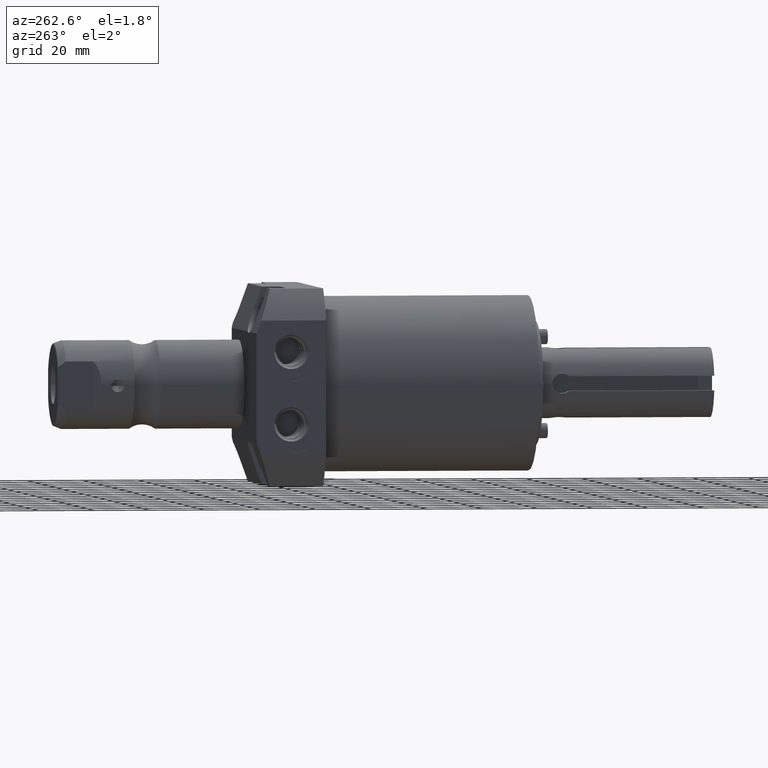
[diagram: clean part render]
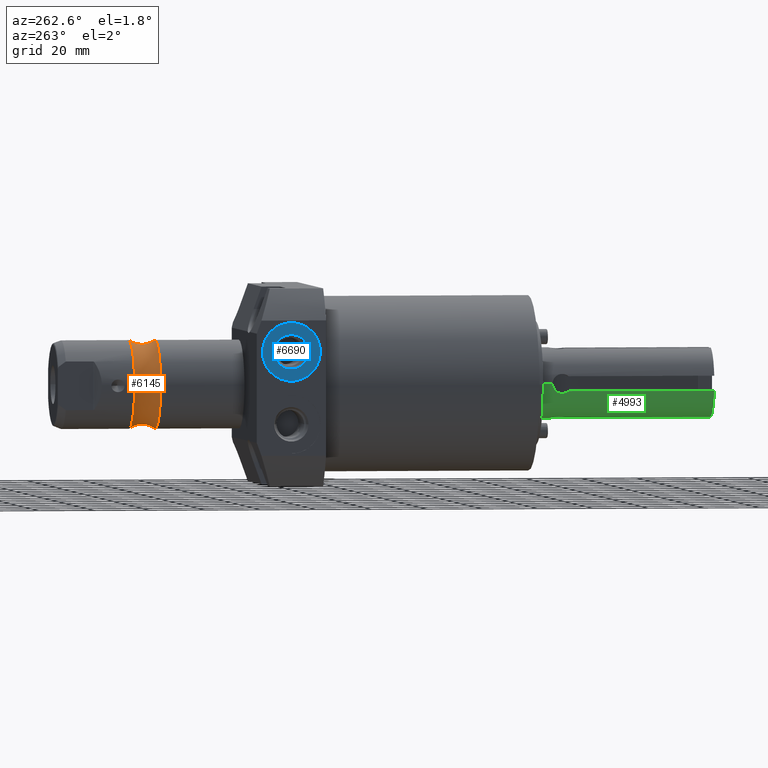
[diagram: same view with three faces highlighted in distinct colors, each labeled with its STEP entity id]
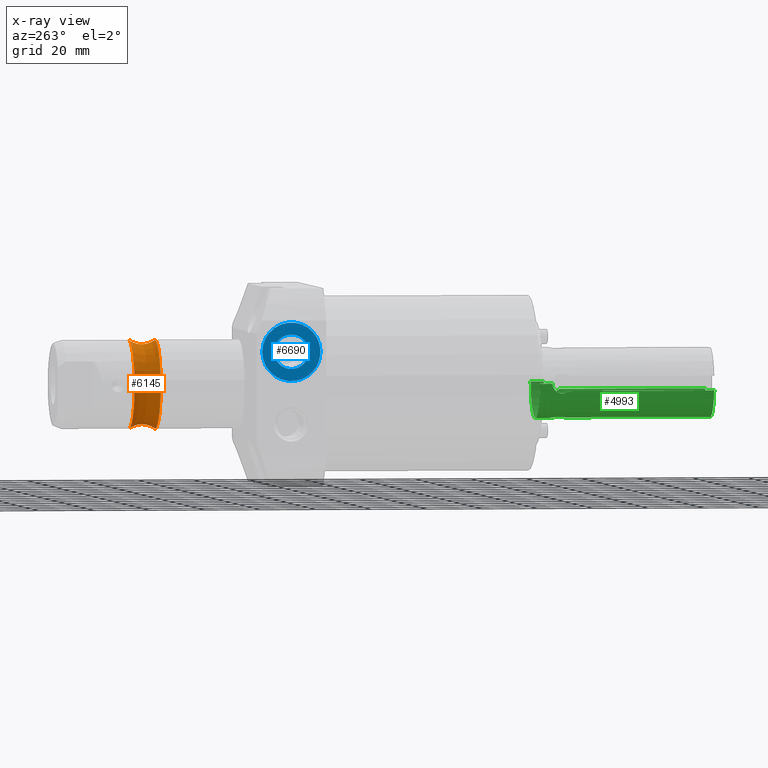
[diagram: x-ray of the same camera — body ghosted, the three highlighted faces saturated]
A machine part, auxiliary view with three faces highlighted in distinct colors.
The next image is the same camera in x-ray (body ghosted, the three faces saturated) — at least one of them is partly hidden behind the body in this view.
Their STEP definitions:

[orange] entity #6145 — the highlighted toroidal blend (fillet) surface has major radius 22.2504 mm and minor (blend) radius 7.9248 mm.
#2004=CARTESIAN_POINT('',(0.E0,5.488E0,-8.76E-1));
#2005=DIRECTION('',(-1.E0,0.E0,0.E0));
#2006=DIRECTION('',(0.E0,-5.939700144290E-1,8.044871794872E-1));
#2007=AXIS2_PLACEMENT_3D('',#2004,#2005,#2006);
#2012=CARTESIAN_POINT('',(0.E0,5.488E0,8.76E-1));
#2013=DIRECTION('',(1.E0,0.E0,0.E0));
#2014=DIRECTION('',(0.E0,-5.939700144290E-1,-8.044871794872E-1));
#2015=AXIS2_PLACEMENT_3D('',#2012,#2013,#2014);
#2020=CARTESIAN_POINT('',(0.E0,5.302681355498E0,0.E0));
#2021=DIRECTION('',(0.E0,1.E0,0.E0));
#2022=DIRECTION('',(0.E0,0.E0,-1.E0));
#2023=AXIS2_PLACEMENT_3D('',#2020,#2021,#2022);
#2504=CARTESIAN_POINT('',(0.E0,5.673318644502E0,0.E0));
#2505=DIRECTION('',(0.E0,1.E0,0.E0));
#2506=DIRECTION('',(0.E0,0.E0,-1.E0));
#2507=AXIS2_PLACEMENT_3D('',#2504,#2505,#2506);
#4394=CARTESIAN_POINT('',(0.E0,5.302681355498E0,-6.25E-1));
#4395=CARTESIAN_POINT('',(0.E0,5.673318644502E0,-6.25E-1));
#4396=VERTEX_POINT('',#4394);
#4397=VERTEX_POINT('',#4395);
#4398=CARTESIAN_POINT('',(0.E0,5.302681355498E0,6.25E-1));
#4399=CARTESIAN_POINT('',(0.E0,5.673318644502E0,6.25E-1));
#4400=VERTEX_POINT('',#4398);
#4401=VERTEX_POINT('',#4399);
#6131=CARTESIAN_POINT('',(0.E0,5.488E0,0.E0));
#6132=DIRECTION('',(0.E0,-1.E0,0.E0));
#6133=DIRECTION('',(0.E0,0.E0,1.E0));
#6134=AXIS2_PLACEMENT_3D('',#6131,#6132,#6133);
#6135=TOROIDAL_SURFACE('',#6134,8.76E-1,3.12E-1);
#6137=ORIENTED_EDGE('',*,*,#6136,.T.);
#6139=ORIENTED_EDGE('',*,*,#6138,.T.);
#6141=ORIENTED_EDGE('',*,*,#6140,.F.);
#6142=ORIENTED_EDGE('',*,*,#6113,.F.);
#6143=EDGE_LOOP('',(#6137,#6139,#6141,#6142));
#6144=FACE_OUTER_BOUND('',#6143,.F.);
#2008=CIRCLE('',#2007,3.12E-1);
#2016=CIRCLE('',#2015,3.12E-1);
#2024=CIRCLE('',#2023,6.25E-1);
#2508=CIRCLE('',#2507,6.25E-1);
#6113=EDGE_CURVE('',#4396,#4400,#2024,.T.);
#6136=EDGE_CURVE('',#4396,#4397,#2008,.T.);
#6138=EDGE_CURVE('',#4397,#4401,#2508,.T.);
#6140=EDGE_CURVE('',#4400,#4401,#2016,.T.);
#6145=ADVANCED_FACE('',(#6144),#6135,.F.);

[blue] entity #6690 — the highlighted planar face has unit normal (-1, 0, 0).
#2558=CARTESIAN_POINT('',(-1.961E0,3.619E0,5.11E-1));
#2559=DIRECTION('',(-1.E0,0.E0,0.E0));
#2560=DIRECTION('',(0.E0,1.E0,0.E0));
#2561=AXIS2_PLACEMENT_3D('',#2558,#2559,#2560);
#2573=CARTESIAN_POINT('',(-1.961E0,3.619E0,5.11E-1));
#2574=DIRECTION('',(1.E0,0.E0,0.E0));
#2575=DIRECTION('',(0.E0,1.E0,0.E0));
#2576=AXIS2_PLACEMENT_3D('',#2573,#2574,#2575);
#2588=CARTESIAN_POINT('',(-1.961E0,3.619E0,5.11E-1));
#2589=DIRECTION('',(1.E0,0.E0,0.E0));
#2590=DIRECTION('',(0.E0,1.E0,0.E0));
#2591=AXIS2_PLACEMENT_3D('',#2588,#2589,#2590);
#2596=CARTESIAN_POINT('',(-1.961E0,3.619E0,5.11E-1));
#2597=DIRECTION('',(-1.E0,0.E0,0.E0));
#2598=DIRECTION('',(0.E0,1.E0,0.E0));
#2599=AXIS2_PLACEMENT_3D('',#2596,#2597,#2598);
#4348=CARTESIAN_POINT('',(-1.961E0,3.8625E0,5.11E-1));
#4349=VERTEX_POINT('',#4348);
#4356=CARTESIAN_POINT('',(-1.961E0,3.3755E0,5.11E-1));
#4357=VERTEX_POINT('',#4356);
#4358=CARTESIAN_POINT('',(-1.961E0,4.0315E0,5.11E-1));
#4359=CARTESIAN_POINT('',(-1.961E0,3.2065E0,5.11E-1));
#4360=VERTEX_POINT('',#4358);
#4361=VERTEX_POINT('',#4359);
#6675=CARTESIAN_POINT('',(-1.961E0,3.619E0,5.11E-1));
#6676=DIRECTION('',(-1.E0,0.E0,0.E0));
#6677=DIRECTION('',(0.E0,1.E0,0.E0));
#6678=AXIS2_PLACEMENT_3D('',#6675,#6676,#6677);
#6679=PLANE('',#6678);
#6680=ORIENTED_EDGE('',*,*,#6655,.F.);
#6681=ORIENTED_EDGE('',*,*,#6669,.T.);
#6682=EDGE_LOOP('',(#6680,#6681));
#6683=FACE_OUTER_BOUND('',#6682,.F.);
#6685=ORIENTED_EDGE('',*,*,#6684,.F.);
#6687=ORIENTED_EDGE('',*,*,#6686,.T.);
#6688=EDGE_LOOP('',(#6685,#6687));
#6689=FACE_BOUND('',#6688,.F.);
#2562=CIRCLE('',#2561,4.125E-1);
#2577=CIRCLE('',#2576,4.125E-1);
#2592=CIRCLE('',#2591,2.435E-1);
#2600=CIRCLE('',#2599,2.435E-1);
#6655=EDGE_CURVE('',#4360,#4361,#2562,.T.);
#6669=EDGE_CURVE('',#4360,#4361,#2577,.T.);
#6684=EDGE_CURVE('',#4349,#4357,#2592,.T.);
#6686=EDGE_CURVE('',#4349,#4357,#2600,.T.);
#6690=ADVANCED_FACE('',(#6683,#6689),#6679,.T.);

[green] entity #4993 — the highlighted cylindrical surface (edge-blend (fillet) strip) has radius 12.7 mm, axis along (0, -1, 0).
#371=CARTESIAN_POINT('',(-5.E-1,-2.825E-1,0.E0));
#396=CARTESIAN_POINT('',(5.E-1,-2.825E-1,0.E0));
#467=CARTESIAN_POINT('',(-4.890644129356E-1,-5.099458170234E-1,-1.04E-1));
#468=CARTESIAN_POINT('',(-4.871922172393E-1,-4.997660852760E-1,
-1.128040797028E-1));
#469=CARTESIAN_POINT('',(-4.837658078606E-1,-4.778923319680E-1,
-1.267141277557E-1));
#470=CARTESIAN_POINT('',(-4.805972282030E-1,-4.399673344435E-1,
-1.379588320811E-1));
#471=CARTESIAN_POINT('',(-4.805916428179E-1,-4.002619174138E-1,
-1.379647402905E-1));
#472=CARTESIAN_POINT('',(-4.837292868504E-1,-3.622717805573E-1,
-1.268847385053E-1));
#473=CARTESIAN_POINT('',(-4.890325763225E-1,-3.286194560265E-1,
-1.052555547459E-1));
#474=CARTESIAN_POINT('',(-4.946993287680E-1,-3.026386489940E-1,
-7.528156913547E-2));
#475=CARTESIAN_POINT('',(-4.989923682837E-1,-2.860890765693E-1,
-3.855151144819E-2));
#476=CARTESIAN_POINT('',(-5.E-1,-2.825E-1,-1.317234006532E-2));
#477=CARTESIAN_POINT('',(-5.E-1,-2.825E-1,0.E0));
#482=DIRECTION('',(0.E0,-1.E0,0.E0));
#483=VECTOR('',#482,2.070054182977E0);
#484=CARTESIAN_POINT('',(-4.890644129356E-1,-5.099458170234E-1,-1.04E-1));
#485=LINE('',#484,#483);
#489=CARTESIAN_POINT('',(0.E0,-2.58E0,0.E0));
#490=DIRECTION('',(0.E0,1.E0,0.E0));
#491=DIRECTION('',(-2.08E-1,0.E0,-9.781288258711E-1));
#492=AXIS2_PLACEMENT_3D('',#489,#490,#491);
#497=DIRECTION('',(0.E0,-1.E0,0.E0));
#498=VECTOR('',#497,2.070054182977E0);
#499=CARTESIAN_POINT('',(-1.04E-1,-5.099458170234E-1,-4.890644129356E-1));
#500=LINE('',#499,#498);
#504=CARTESIAN_POINT('',(-1.04E-1,-5.099458170234E-1,-4.890644129356E-1));
#505=CARTESIAN_POINT('',(-1.135592515578E-1,-4.988929165671E-1,
-4.870316292455E-1));
#506=CARTESIAN_POINT('',(-1.282142979084E-1,-4.751761353507E-1,
-4.833701807968E-1));
#507=CARTESIAN_POINT('',(-1.388688080099E-1,-4.343126006698E-1,
-4.803281211410E-1));
#508=CARTESIAN_POINT('',(-1.368974165774E-1,-3.927912018604E-1,
-4.809086194875E-1));
#509=CARTESIAN_POINT('',(-1.225814686072E-1,-3.530315062242E-1,
-4.848874092598E-1));
#510=CARTESIAN_POINT('',(-9.640549590468E-2,-3.188677069545E-1,
-4.909608783205E-1));
#511=CARTESIAN_POINT('',(-6.111320507092E-2,-2.944184888595E-1,
-4.967535102342E-1));
#512=CARTESIAN_POINT('',(-2.085459835888E-2,-2.819809155306E-1,
-5.001392100955E-1));
#513=CARTESIAN_POINT('',(2.085456027688E-2,-2.819808356023E-1,
-5.001392303134E-1));
#514=CARTESIAN_POINT('',(6.111390116872E-2,-2.944188053197E-1,
-4.967534287154E-1));
#515=CARTESIAN_POINT('',(9.640573959279E-2,-3.188679796518E-1,
-4.909608210201E-1));
#516=CARTESIAN_POINT('',(1.225816907863E-1,-3.530319039892E-1,
-4.848873540862E-1));
#517=CARTESIAN_POINT('',(1.368974630840E-1,-3.927914912192E-1,
-4.809086044654E-1));
#518=CARTESIAN_POINT('',(1.388687704556E-1,-4.343129023734E-1,
-4.803281326001E-1));
#519=CARTESIAN_POINT('',(1.282142362311E-1,-4.751762317332E-1,
-4.833701970146E-1));
#520=CARTESIAN_POINT('',(1.135592234171E-1,-4.988929491049E-1,
-4.870316352296E-1));
#521=CARTESIAN_POINT('',(1.04E-1,-5.099458170234E-1,-4.890644129356E-1));
#526=DIRECTION('',(0.E0,-1.E0,0.E0));
#527=VECTOR('',#526,2.070054182977E0);
#528=CARTESIAN_POINT('',(1.04E-1,-5.099458170234E-1,-4.890644129356E-1));
#529=LINE('',#528,#527);
#533=CARTESIAN_POINT('',(0.E0,-2.58E0,0.E0));
#534=DIRECTION('',(0.E0,1.E0,0.E0));
#535=DIRECTION('',(9.781288258711E-1,0.E0,-2.08E-1));
#536=AXIS2_PLACEMENT_3D('',#533,#534,#535);
#541=DIRECTION('',(0.E0,-1.E0,0.E0));
#542=VECTOR('',#541,2.070054182977E0);
#543=CARTESIAN_POINT('',(4.890644129356E-1,-5.099458170234E-1,-1.04E-1));
#544=LINE('',#543,#542);
#548=CARTESIAN_POINT('',(5.E-1,-2.825E-1,0.E0));
#549=CARTESIAN_POINT('',(5.E-1,-2.825E-1,-1.311028735703E-2));
#550=CARTESIAN_POINT('',(4.990070804210E-1,-2.860306303716E-1,
-3.840363443913E-2));
#551=CARTESIAN_POINT('',(4.946888671779E-1,-3.026883206353E-1,
-7.535791385948E-2));
#552=CARTESIAN_POINT('',(4.890463457981E-1,-3.285362910365E-1,
-1.051871600723E-1));
#553=CARTESIAN_POINT('',(4.837084250505E-1,-3.624258390340E-1,
-1.269701033496E-1));
#554=CARTESIAN_POINT('',(4.805910931241E-1,-4.003257353585E-1,
-1.379633193650E-1));
#555=CARTESIAN_POINT('',(4.805992156089E-1,-4.400803785103E-1,
-1.379536318827E-1));
#556=CARTESIAN_POINT('',(4.837859737362E-1,-4.780486598044E-1,
-1.266388856237E-1));
#557=CARTESIAN_POINT('',(4.872020768353E-1,-4.998196950793E-1,
-1.127577145341E-1));
#558=CARTESIAN_POINT('',(4.890644129356E-1,-5.099458170234E-1,-1.04E-1));
#563=DIRECTION('',(0.E0,1.E0,0.E0));
#564=VECTOR('',#563,1.825E-1);
#565=CARTESIAN_POINT('',(5.E-1,-2.825E-1,0.E0));
#566=LINE('',#565,#564);
#570=DIRECTION('',(0.E0,1.E0,0.E0));
#571=VECTOR('',#570,1.825E-1);
#572=CARTESIAN_POINT('',(-5.E-1,-2.825E-1,0.E0));
#573=LINE('',#572,#571);
#801=CARTESIAN_POINT('',(0.E0,-1.E-1,0.E0));
#802=DIRECTION('',(0.E0,1.E0,0.E0));
#803=DIRECTION('',(1.E0,0.E0,0.E0));
#804=AXIS2_PLACEMENT_3D('',#801,#802,#803);
#4460=CARTESIAN_POINT('',(5.E-1,-1.E-1,0.E0));
#4461=CARTESIAN_POINT('',(-5.E-1,-1.E-1,0.E0));
#4462=VERTEX_POINT('',#4460);
#4463=VERTEX_POINT('',#4461);
#4518=VERTEX_POINT('',#504);
#4519=VERTEX_POINT('',#521);
#4520=CARTESIAN_POINT('',(1.04E-1,-2.58E0,-4.890644129356E-1));
#4521=VERTEX_POINT('',#4520);
#4522=CARTESIAN_POINT('',(-1.04E-1,-2.58E0,-4.890644129356E-1));
#4523=VERTEX_POINT('',#4522);
#4745=VERTEX_POINT('',#396);
#4748=VERTEX_POINT('',#558);
#4749=CARTESIAN_POINT('',(4.890644129356E-1,-2.58E0,-1.04E-1));
#4750=VERTEX_POINT('',#4749);
#4759=VERTEX_POINT('',#371);
#4763=VERTEX_POINT('',#467);
#4764=CARTESIAN_POINT('',(-4.890644129356E-1,-2.58E0,-1.04E-1));
#4765=VERTEX_POINT('',#4764);
#4967=CARTESIAN_POINT('',(0.E0,1.29E-1,0.E0));
#4968=DIRECTION('',(0.E0,-1.E0,0.E0));
#4969=DIRECTION('',(-1.E0,0.E0,0.E0));
#4970=AXIS2_PLACEMENT_3D('',#4967,#4968,#4969);
#4971=CYLINDRICAL_SURFACE('',#4970,5.E-1);
#4972=ORIENTED_EDGE('',*,*,#4791,.F.);
#4974=ORIENTED_EDGE('',*,*,#4973,.T.);
#4975=ORIENTED_EDGE('',*,*,#4916,.F.);
#4977=ORIENTED_EDGE('',*,*,#4976,.F.);
#4979=ORIENTED_EDGE('',*,*,#4978,.T.);
#4981=ORIENTED_EDGE('',*,*,#4980,.T.);
#4982=ORIENTED_EDGE('',*,*,#4900,.F.);
#4984=ORIENTED_EDGE('',*,*,#4983,.F.);
#4986=ORIENTED_EDGE('',*,*,#4985,.F.);
#4987=ORIENTED_EDGE('',*,*,#4949,.T.);
#4989=ORIENTED_EDGE('',*,*,#4988,.T.);
#4990=ORIENTED_EDGE('',*,*,#4945,.F.);
#4991=EDGE_LOOP('',(#4972,#4974,#4975,#4977,#4979,#4981,#4982,#4984,#4986,#4987,
#4989,#4990));
#4992=FACE_OUTER_BOUND('',#4991,.F.);
#478=B_SPLINE_CURVE_WITH_KNOTS('',3,(#467,#468,#469,#470,#471,#472,#473,#474,
#475,#476,#477),.UNSPECIFIED.,.F.,.F.,(4,1,1,1,1,1,1,1,4),(0.E0,1.25E-1,2.5E-1,
3.75E-1,5.E-1,6.25E-1,7.5E-1,8.75E-1,1.E0),.UNSPECIFIED.);
#493=CIRCLE('',#492,5.E-1);
#522=B_SPLINE_CURVE_WITH_KNOTS('',3,(#504,#505,#506,#507,#508,#509,#510,#511,
#512,#513,#514,#515,#516,#517,#518,#519,#520,#521),.UNSPECIFIED.,.F.,.F.,(4,1,1,
1,1,1,1,1,1,1,1,1,1,1,1,4),(0.E0,6.666666666667E-2,1.333333333333E-1,2.E-1,
2.666666666667E-1,3.333333333333E-1,4.E-1,4.666666666667E-1,5.333333333333E-1,
6.E-1,6.666666666667E-1,7.333333333333E-1,8.E-1,8.666666666667E-1,
9.333333333333E-1,1.E0),.UNSPECIFIED.);
#537=CIRCLE('',#536,5.E-1);
#559=B_SPLINE_CURVE_WITH_KNOTS('',3,(#548,#549,#550,#551,#552,#553,#554,#555,
#556,#557,#558),.UNSPECIFIED.,.F.,.F.,(4,1,1,1,1,1,1,1,4),(0.E0,1.25E-1,2.5E-1,
3.75E-1,5.E-1,6.25E-1,7.5E-1,8.75E-1,1.E0),.UNSPECIFIED.);
#805=CIRCLE('',#804,5.E-1);
#4791=EDGE_CURVE('',#4763,#4759,#478,.T.);
#4900=EDGE_CURVE('',#4750,#4521,#537,.T.);
#4916=EDGE_CURVE('',#4523,#4765,#493,.T.);
#4945=EDGE_CURVE('',#4759,#4463,#573,.T.);
#4949=EDGE_CURVE('',#4745,#4462,#566,.T.);
#4973=EDGE_CURVE('',#4763,#4765,#485,.T.);
#4976=EDGE_CURVE('',#4518,#4523,#500,.T.);
#4978=EDGE_CURVE('',#4518,#4519,#522,.T.);
#4980=EDGE_CURVE('',#4519,#4521,#529,.T.);
#4983=EDGE_CURVE('',#4748,#4750,#544,.T.);
#4985=EDGE_CURVE('',#4745,#4748,#559,.T.);
#4988=EDGE_CURVE('',#4462,#4463,#805,.T.);
#4993=ADVANCED_FACE('',(#4992),#4971,.T.);